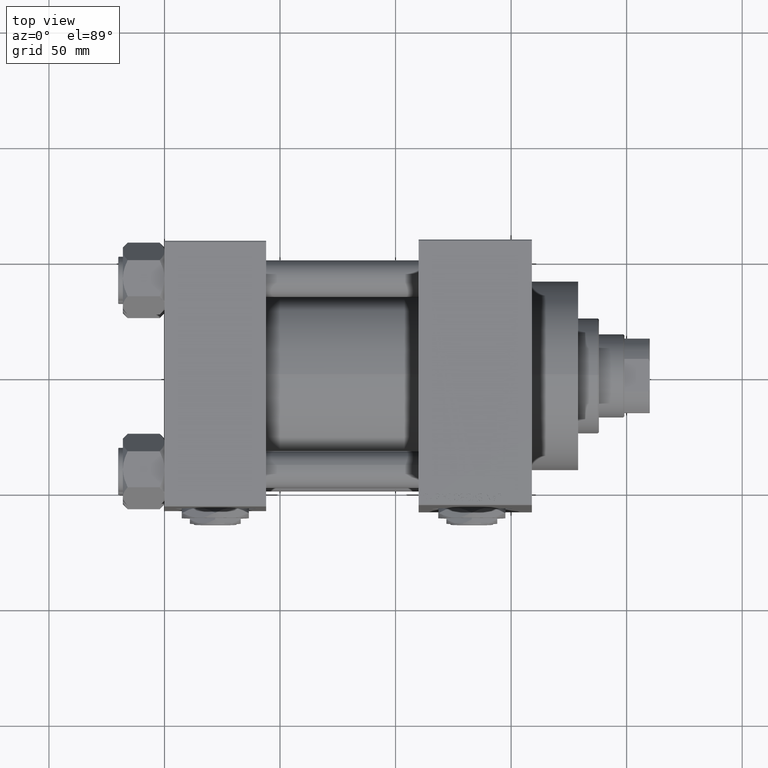
[diagram: clean part render]
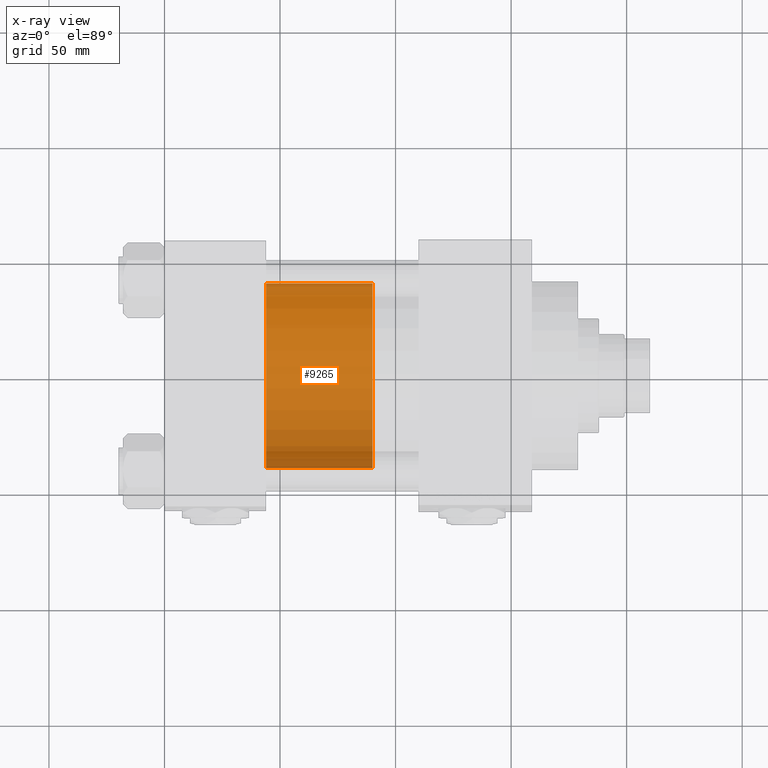
[diagram: x-ray — body ghosted, one internal face saturated and labeled with its STEP entity id]
A machine part, top view, then the same camera in x-ray: the body is ghosted and one INTERNAL B-rep face — a face not visible from any outside direction — is saturated and labeled: STEP entity #9265.
In plain terms, the highlighted cylindrical surface (partial cylindrical patch) has radius 40 mm, axis along (-1, 0, 0).
Its self-contained STEP definition (entity closure, byte-faithful):
#39 = EDGE_LOOP ( 'NONE', ( #13301, #45897, #31627, #13237 ) ) ;
#254 = DIRECTION ( 'NONE',  ( -0.000000000000000000, -0.000000000000000000, -1.000000000000000000 ) ) ;
#3876 = CARTESIAN_POINT ( 'NONE',  ( -40.00000000000000000, 0.000000000000000000, 46.00000000000000000 ) ) ;
#7177 = CARTESIAN_POINT ( 'NONE',  ( -40.00000000000000000, 0.000000000000000000, 46.00000000000000000 ) ) ;
#7999 = VECTOR ( 'NONE', #22517, 1000.000000000000000 ) ;
#8039 = CARTESIAN_POINT ( 'NONE',  ( 40.00000000000000000, 4.898587196589413026E-15, 46.00000000000000000 ) ) ;
#9265 = ADVANCED_FACE ( 'NONE', ( #27049 ), #11443, .T. ) ;
#11443 = CYLINDRICAL_SURFACE ( 'NONE', #34916, 40.00000000000000000 ) ;
#12205 = DIRECTION ( 'NONE',  ( 0.000000000000000000, 0.000000000000000000, 1.000000000000000000 ) ) ;
#13237 = ORIENTED_EDGE ( 'NONE', *, *, #20322, .F. ) ;
#13301 = ORIENTED_EDGE ( 'NONE', *, *, #15496, .F. ) ;
#14203 = AXIS2_PLACEMENT_3D ( 'NONE', #38383, #47612, #38135 ) ;
#15496 = EDGE_CURVE ( 'NONE', #32947, #16334, #20651, .T. ) ;
#16334 = VERTEX_POINT ( 'NONE', #3876 ) ;
#18622 = CIRCLE ( 'NONE', #46746, 40.00000000000000000 ) ;
#20322 = EDGE_CURVE ( 'NONE', #16334, #27217, #39306, .T. ) ;
#20651 = CIRCLE ( 'NONE', #14203, 40.00000000000000000 ) ;
#22517 = DIRECTION ( 'NONE',  ( -0.000000000000000000, -0.000000000000000000, -1.000000000000000000 ) ) ;
#25630 = EDGE_CURVE ( 'NONE', #26235, #27217, #18622, .T. ) ;
#26235 = VERTEX_POINT ( 'NONE', #36007 ) ;
#26814 = CARTESIAN_POINT ( 'NONE',  ( 0.000000000000000000, 0.000000000000000000, 0.000000000000000000 ) ) ;
#27049 = FACE_OUTER_BOUND ( 'NONE', #39, .T. ) ;
#27217 = VERTEX_POINT ( 'NONE', #32294 ) ;
#27571 = DIRECTION ( 'NONE',  ( 1.000000000000000000, 0.000000000000000000, 0.000000000000000000 ) ) ;
#31627 = ORIENTED_EDGE ( 'NONE', *, *, #25630, .T. ) ;
#32294 = CARTESIAN_POINT ( 'NONE',  ( -40.00000000000000000, 0.000000000000000000, 0.000000000000000000 ) ) ;
#32947 = VERTEX_POINT ( 'NONE', #8039 ) ;
#34916 = AXIS2_PLACEMENT_3D ( 'NONE', #35100, #42415, #42661 ) ;
#35100 = CARTESIAN_POINT ( 'NONE',  ( 0.000000000000000000, 0.000000000000000000, 46.00000000000000000 ) ) ;
#35501 = EDGE_CURVE ( 'NONE', #32947, #26235, #39518, .T. ) ;
#35739 = CARTESIAN_POINT ( 'NONE',  ( 40.00000000000000000, 4.898587196589413026E-15, 46.00000000000000000 ) ) ;
#36007 = CARTESIAN_POINT ( 'NONE',  ( 40.00000000000000000, 4.898587196589413026E-15, 0.000000000000000000 ) ) ;
#38135 = DIRECTION ( 'NONE',  ( 1.000000000000000000, 0.000000000000000000, 0.000000000000000000 ) ) ;
#38383 = CARTESIAN_POINT ( 'NONE',  ( 0.000000000000000000, 0.000000000000000000, 46.00000000000000000 ) ) ;
#39306 = LINE ( 'NONE', #7177, #7999 ) ;
#39518 = LINE ( 'NONE', #35739, #47835 ) ;
#42415 = DIRECTION ( 'NONE',  ( -0.000000000000000000, -0.000000000000000000, -1.000000000000000000 ) ) ;
#42661 = DIRECTION ( 'NONE',  ( -1.000000000000000000, 0.000000000000000000, 0.000000000000000000 ) ) ;
#45897 = ORIENTED_EDGE ( 'NONE', *, *, #35501, .T. ) ;
#46746 = AXIS2_PLACEMENT_3D ( 'NONE', #26814, #12205, #27571 ) ;
#47612 = DIRECTION ( 'NONE',  ( 0.000000000000000000, 0.000000000000000000, 1.000000000000000000 ) ) ;
#47835 = VECTOR ( 'NONE', #254, 1000.000000000000000 ) ;